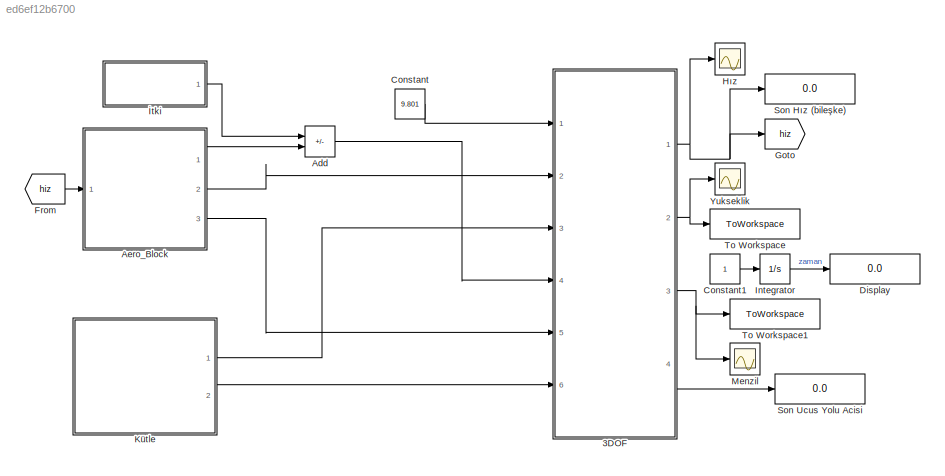
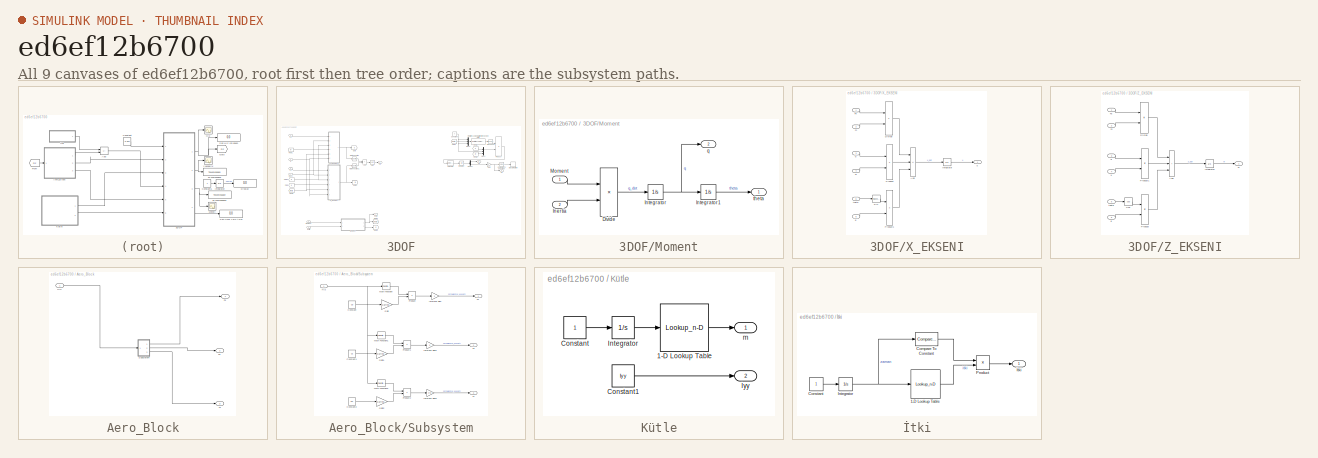
[diagram: thumbnail index - all 9 canvases of the model, root first then tree order]
MODEL slx_ed6ef12b6700
KIND model
CONFIG AbsTol = auto
CONFIG EnableMultiTasking = off
CONFIG FixedStep = auto
CONFIG MaxStep = auto
CONFIG MinStep = auto
CONFIG RelTol = 1e-3
CONFIG SampleTimeConstraint = Unconstrained
CONFIG SolverName = VariableStepAuto
CONFIG StartTime = 0.0
CONFIG StopTime = 500
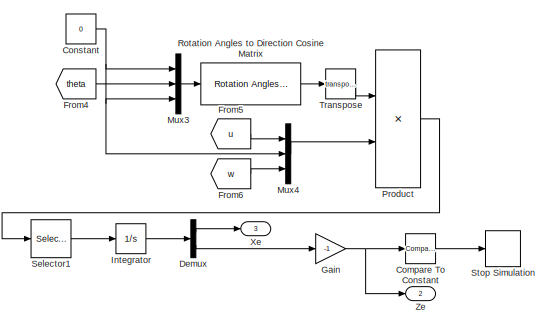
[diagram: 3DOF - part 1/2, top right region]
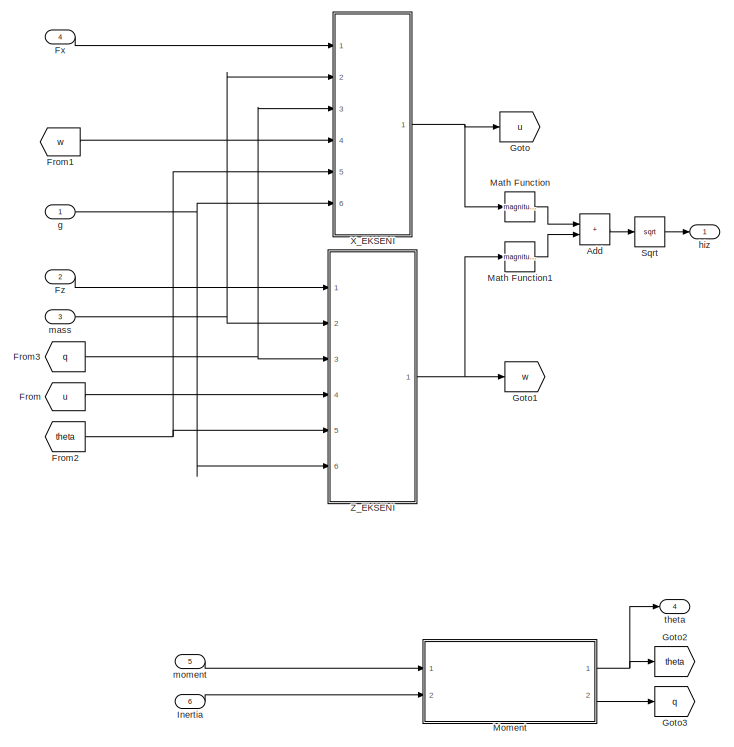
[diagram: 3DOF - part 2/2, left side, full height]
BLOCK [SubSystem] 3DOF
  NameLocation = right
  Ports = [6, 4]
  RequestExecContextInheritance = off
BLOCK [Sum] 3DOF/Add
  IconShape = rectangular
  Ports = [2, 1]
BLOCK [Reference] 3DOF/Compare To Constant  REF=simulink/Logic and Bit
Operations/Compare
To Constant
  Ports = [1, 1]
  SourceBlock = simulink/Logic and Bit\nOperations/Compare\nTo Constant
  SourceProductBaseCode = SL
  SourceType = Compare To Constant
BLOCK [Constant] 3DOF/Constant
  Value = 0
BLOCK [Demux] 3DOF/Demux
  Outputs = 2
  Ports = [1, 2]
BLOCK [From] 3DOF/From
  GotoTag = u
BLOCK [From] 3DOF/From1
  GotoTag = w
BLOCK [From] 3DOF/From2
  GotoTag = theta
BLOCK [From] 3DOF/From3
  GotoTag = q
BLOCK [From] 3DOF/From4
  GotoTag = theta
BLOCK [From] 3DOF/From5
  GotoTag = u
BLOCK [From] 3DOF/From6
  GotoTag = w
BLOCK [Inport] 3DOF/Fx
  Port = 4
BLOCK [Inport] 3DOF/Fz
  Port = 2
BLOCK [Gain] 3DOF/Gain
  Gain = -1
BLOCK [Goto] 3DOF/Goto
  GotoTag = u
BLOCK [Goto] 3DOF/Goto1
  GotoTag = w
BLOCK [Goto] 3DOF/Goto2
  GotoTag = theta
BLOCK [Goto] 3DOF/Goto3
  GotoTag = q
BLOCK [Inport] 3DOF/Inertia
  Port = 6
BLOCK [Integrator] 3DOF/Integrator
  Ports = [1, 1]
BLOCK [Math] 3DOF/Math Function
  Operator = magnitude^2
  Ports = [1, 1]
BLOCK [Math] 3DOF/Math Function1
  Operator = magnitude^2
  Ports = [1, 1]
BLOCK [SubSystem] 3DOF/Moment
  Ports = [2, 2]
  RequestExecContextInheritance = off
BLOCK [Product] 3DOF/Moment/Divide
  Inputs = */
  Ports = [2, 1]
BLOCK [Inport] 3DOF/Moment/Inertia
  Port = 2
BLOCK [Integrator] 3DOF/Moment/Integrator
  Ports = [1, 1]
BLOCK [Integrator] 3DOF/Moment/Integrator1
  InitialCondition = 70*pi/180
  Ports = [1, 1]
BLOCK [Inport] 3DOF/Moment/Moment
BLOCK [Outport] 3DOF/Moment/q
  Port = 2
BLOCK [Outport] 3DOF/Moment/theta
BLOCK [Mux] 3DOF/Mux3
  DisplayOption = bar
  Inputs = 3
  Ports = [3, 1]
BLOCK [Mux] 3DOF/Mux4
  DisplayOption = bar
  Inputs = 3
  Ports = [3, 1]
BLOCK [Product] 3DOF/Product
  Multiplication = Matrix(*)
  OutDataTypeStr = Inherit: Same as first input
  Ports = [2, 1]
  SaturateOnIntegerOverflow = on
BLOCK [Reference] 3DOF/Rotation Angles to Direction Cosine Matrix  REF=sharedtransform/Rotation Angles to
Direction Cosine Matrix
  AttributesFormatString = Rotation Order: %<rotationOrder>
  NameLocation = top
  Ports = [1, 1]
  SourceBlock = sharedtransform/Rotation Angles to\nDirection Cosine Matrix
  SourceProductBaseCode = AE,PW,MT,UV,VE,VP
  SourceType = Ang2DCM
BLOCK [Selector] 3DOF/Selector1
  IndexOptions = Index vector (dialog)
  Indices = [1 3]
  InputPortWidth = 3
  OutputSizes = 1
  Ports = [1, 1]
BLOCK [Sqrt] 3DOF/Sqrt
BLOCK [Stop] 3DOF/Stop Simulation
BLOCK [Math] 3DOF/Transpose
  Operator = transpose
  Ports = [1, 1]
  SignedPower = on
BLOCK [SubSystem] 3DOF/X_EKSENI
  Ports = [6, 1]
  RequestExecContextInheritance = off
BLOCK [Sum] 3DOF/X_EKSENI/Add
  IconShape = rectangular
  Inputs = +--
  Ports = [3, 1]
BLOCK [Product] 3DOF/X_EKSENI/Divide
  Inputs = */
  Ports = [2, 1]
BLOCK [Inport] 3DOF/X_EKSENI/Fx
BLOCK [Integrator] 3DOF/X_EKSENI/Integrator
  Ports = [1, 1]
BLOCK [Product] 3DOF/X_EKSENI/Product
  Ports = [2, 1]
BLOCK [Product] 3DOF/X_EKSENI/Product1
  Ports = [2, 1]
BLOCK [Trigonometry] 3DOF/X_EKSENI/Sin
  Ports = [1, 1]
BLOCK [Inport] 3DOF/X_EKSENI/g
  Port = 6
BLOCK [Inport] 3DOF/X_EKSENI/m
  Port = 2
BLOCK [Inport] 3DOF/X_EKSENI/q
  Port = 3
BLOCK [Inport] 3DOF/X_EKSENI/theta
  Port = 5
BLOCK [Outport] 3DOF/X_EKSENI/u
BLOCK [Inport] 3DOF/X_EKSENI/w
  Port = 4
BLOCK [Outport] 3DOF/Xe
  Port = 3
BLOCK [SubSystem] 3DOF/Z_EKSENI
  Ports = [6, 1]
  RequestExecContextInheritance = off
BLOCK [Sum] 3DOF/Z_EKSENI/Add
  IconShape = rectangular
  Inputs = +++
  Ports = [3, 1]
BLOCK [Trigonometry] 3DOF/Z_EKSENI/Cos
  Operator = cos
  Ports = [1, 1]
BLOCK [Product] 3DOF/Z_EKSENI/Divide
  Inputs = */
  Ports = [2, 1]
BLOCK [Inport] 3DOF/Z_EKSENI/Fz
BLOCK [Integrator] 3DOF/Z_EKSENI/Integrator
  Ports = [1, 1]
BLOCK [Product] 3DOF/Z_EKSENI/Product
  Ports = [2, 1]
BLOCK [Product] 3DOF/Z_EKSENI/Product1
  Ports = [2, 1]
BLOCK [Inport] 3DOF/Z_EKSENI/g
  Port = 6
BLOCK [Inport] 3DOF/Z_EKSENI/m
  Port = 2
BLOCK [Inport] 3DOF/Z_EKSENI/q
  Port = 3
BLOCK [Inport] 3DOF/Z_EKSENI/theta
  Port = 5
BLOCK [Inport] 3DOF/Z_EKSENI/u
  Port = 4
BLOCK [Outport] 3DOF/Z_EKSENI/w
BLOCK [Outport] 3DOF/Ze
  Port = 2
BLOCK [Inport] 3DOF/g
BLOCK [Outport] 3DOF/hiz
BLOCK [Inport] 3DOF/mass
  Port = 3
BLOCK [Inport] 3DOF/moment
  Port = 5
BLOCK [Outport] 3DOF/theta
  Port = 4
BLOCK [Sum] Add
  IconShape = rectangular
  Inputs = +-
  Ports = [2, 1]
BLOCK [SubSystem] Aero_Block
  Ports = [1, 3]
  RequestExecContextInheritance = off
BLOCK [Outport] Aero_Block/Fx
BLOCK [Outport] Aero_Block/Fz
  Port = 2
BLOCK [Inport] Aero_Block/Hız
BLOCK [Outport] Aero_Block/M
  Port = 3
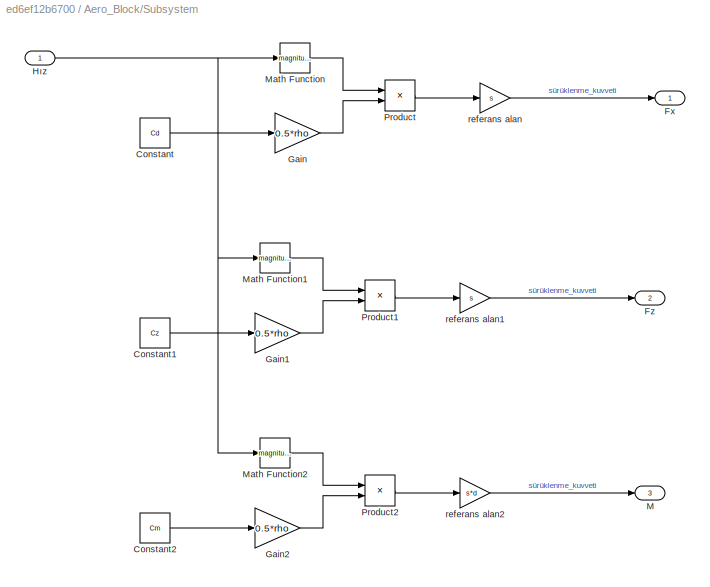
BLOCK [SubSystem] Aero_Block/Subsystem
  Ports = [1, 3]
  RequestExecContextInheritance = off
BLOCK [Constant] Aero_Block/Subsystem/Constant
  Value = Cd
BLOCK [Constant] Aero_Block/Subsystem/Constant1
  Value = Cz
BLOCK [Constant] Aero_Block/Subsystem/Constant2
  Value = Cm
BLOCK [Outport] Aero_Block/Subsystem/Fx
BLOCK [Outport] Aero_Block/Subsystem/Fz
  Port = 2
BLOCK [Gain] Aero_Block/Subsystem/Gain
  Gain = 0.5*rho
BLOCK [Gain] Aero_Block/Subsystem/Gain1
  Gain = 0.5*rho
BLOCK [Gain] Aero_Block/Subsystem/Gain2
  Gain = 0.5*rho
BLOCK [Inport] Aero_Block/Subsystem/Hız
BLOCK [Outport] Aero_Block/Subsystem/M
  Port = 3
BLOCK [Math] Aero_Block/Subsystem/Math Function
  Operator = magnitude^2
  Ports = [1, 1]
BLOCK [Math] Aero_Block/Subsystem/Math Function1
  Operator = magnitude^2
  Ports = [1, 1]
BLOCK [Math] Aero_Block/Subsystem/Math Function2
  Operator = magnitude^2
  Ports = [1, 1]
BLOCK [Product] Aero_Block/Subsystem/Product
  Ports = [2, 1]
BLOCK [Product] Aero_Block/Subsystem/Product1
  Ports = [2, 1]
BLOCK [Product] Aero_Block/Subsystem/Product2
  Ports = [2, 1]
BLOCK [Gain] Aero_Block/Subsystem/referans alan
  Gain = s
BLOCK [Gain] Aero_Block/Subsystem/referans alan1
  Gain = s
BLOCK [Gain] Aero_Block/Subsystem/referans alan2
  Gain = s*d
BLOCK [Constant] Constant
  Value = 9.801
BLOCK [Constant] Constant1
BLOCK [Display] Display
  Decimation = 1
  Ports = [1]
BLOCK [From] From
  GotoTag = hiz
BLOCK [Goto] Goto
  GotoTag = hiz
BLOCK [Scope] Hız
  Floating = off
  NumInputPorts = 1
  Ports = [1]
  ScopeSpecificationString = Simulink.scopes.TimeScopeBlockCfg('CurrentConfiguration', extmgr.ConfigurationSet(extmgr.Configuration('Core','General UI',true),extmgr.Configuration('Core','Source UI',true),extmgr.Configuration('Sources','WiredSimulink',true,'DataLoggingVariableName','ScopeData1'),extmgr.Configuration('Visuals','Time Domain',true,'SerializedDisplays',{struct('MinYLimReal','-37.29024','MaxYLimReal','335.61214','Y...<+1448ch>
BLOCK [Integrator] Integrator
  Ports = [1, 1]
BLOCK [SubSystem] Kütle
  Ports = [0, 2]
  RequestExecContextInheritance = off
BLOCK [Lookup_n-D] Kütle/1-D Lookup Table
  BreakpointsForDimension1 = [1:1001]
  InputPortMap = u0
  InternalRulePriority = Speed
  NumberOfTableDimensions = 1
  Ports = [1, 1]
  RndMeth = Simplest
  Table = m
BLOCK [Constant] Kütle/Constant
BLOCK [Constant] Kütle/Constant1
  Value = Iyy
BLOCK [Integrator] Kütle/Integrator
  Ports = [1, 1]
BLOCK [Outport] Kütle/Iyy
  Port = 2
BLOCK [Outport] Kütle/m
BLOCK [Scope] Menzil
  Floating = off
  NumInputPorts = 1
  Ports = [1]
  ScopeSpecificationString = Simulink.scopes.TimeScopeBlockCfg('CurrentConfiguration', extmgr.ConfigurationSet(extmgr.Configuration('Core','General UI',true),extmgr.Configuration('Core','Source UI',true),extmgr.Configuration('Sources','WiredSimulink',true,'DataLoggingVariableName','ScopeData1'),extmgr.Configuration('Visuals','Time Domain',true,'SerializedDisplays',{struct('MinYLimReal','3545.57475','MaxYLimReal','3545.58346',...<+1433ch>
BLOCK [Display] Son Hız (bileşke)
  Decimation = 1
  Ports = [1]
BLOCK [Display] Son Ucus Yolu Acisi
  Decimation = 1
  Ports = [1]
BLOCK [ToWorkspace] To Workspace
  FixptAsFi = on
  MaxDataPoints = inf
  Ports = [1]
  SampleTime = -1
  VariableName = Ze
BLOCK [ToWorkspace] To Workspace1
  FixptAsFi = on
  MaxDataPoints = inf
  Ports = [1]
  SampleTime = -1
  VariableName = Xe
BLOCK [Scope] Yukseklik
  Floating = off
  NumInputPorts = 1
  Ports = [1]
  ScopeSpecificationString = Simulink.scopes.TimeScopeBlockCfg('CurrentConfiguration', extmgr.ConfigurationSet(extmgr.Configuration('Core','General UI',true),extmgr.Configuration('Core','Source UI',true),extmgr.Configuration('Sources','WiredSimulink',true),extmgr.Configuration('Visuals','Time Domain',true,'SerializedDisplays',{struct('MinYLimReal','3382.86904','MaxYLimReal','3416.44417','YLabelReal','','MinYLimMag','3382.8690...<+1419ch>
BLOCK [SubSystem] İtki
  Ports = [0, 1]
  RequestExecContextInheritance = off
BLOCK [Lookup_n-D] İtki/1-D Lookup Table
  BreakpointsForDimension1 = zaman
  InputPortMap = u0
  InternalRulePriority = Speed
  NumberOfTableDimensions = 1
  Ports = [1, 1]
  RndMeth = Simplest
  Table = itki
BLOCK [Reference] İtki/Compare To Constant  REF=simulink/Logic and Bit
Operations/Compare
To Constant
  Ports = [1, 1]
  SourceBlock = simulink/Logic and Bit\nOperations/Compare\nTo Constant
  SourceProductBaseCode = SL
  SourceType = Compare To Constant
BLOCK [Constant] İtki/Constant
BLOCK [Integrator] İtki/Integrator
  Ports = [1, 1]
BLOCK [Product] İtki/Product
  Ports = [2, 1]
BLOCK [Outport] İtki/İtki
LINE 3DOF/Add:1 -> 3DOF/Sqrt:1
LINE 3DOF/Compare To Constant:1 -> 3DOF/Stop Simulation:1
NET 3DOF/Constant:1 -> 3DOF/Mux3:1, 3DOF/Mux3:3, 3DOF/Mux4:2
LINE 3DOF/Demux:1 -> 3DOF/Xe:1
LINE 3DOF/Demux:2 -> 3DOF/Gain:1
LINE 3DOF/From1:1 -> 3DOF/X_EKSENI:4
NET 3DOF/From2:1 -> 3DOF/X_EKSENI:5, 3DOF/Z_EKSENI:5
NET 3DOF/From3:1 -> 3DOF/X_EKSENI:3, 3DOF/Z_EKSENI:3
LINE 3DOF/From4:1 -> 3DOF/Mux3:2
LINE 3DOF/From5:1 -> 3DOF/Mux4:1
LINE 3DOF/From6:1 -> 3DOF/Mux4:3
LINE 3DOF/From:1 -> 3DOF/Z_EKSENI:4
LINE 3DOF/Fx:1 -> 3DOF/X_EKSENI:1
LINE 3DOF/Fz:1 -> 3DOF/Z_EKSENI:1
NET 3DOF/Gain:1 -> 3DOF/Compare To Constant:1, 3DOF/Ze:1
LINE 3DOF/Inertia:1 -> 3DOF/Moment:2
LINE 3DOF/Integrator:1 -> 3DOF/Demux:1
LINE 3DOF/Math Function1:1 -> 3DOF/Add:2
LINE 3DOF/Math Function:1 -> 3DOF/Add:1
LINE 3DOF/Moment/Divide:1 -> 3DOF/Moment/Integrator:1
LINE 3DOF/Moment/Inertia:1 -> 3DOF/Moment/Divide:2
LINE 3DOF/Moment/Integrator1:1 -> 3DOF/Moment/theta:1
NET 3DOF/Moment/Integrator:1 -> 3DOF/Moment/Integrator1:1, 3DOF/Moment/q:1
LINE 3DOF/Moment/Moment:1 -> 3DOF/Moment/Divide:1
NET 3DOF/Moment:1 -> 3DOF/Goto2:1, 3DOF/theta:1
LINE 3DOF/Moment:2 -> 3DOF/Goto3:1
LINE 3DOF/Mux3:1 -> 3DOF/Rotation Angles to Direction Cosine Matrix:1
LINE 3DOF/Mux4:1 -> 3DOF/Product:2
LINE 3DOF/Product:1 -> 3DOF/Selector1:1
LINE 3DOF/Rotation Angles to Direction Cosine Matrix:1 -> 3DOF/Transpose:1
LINE 3DOF/Selector1:1 -> 3DOF/Integrator:1
LINE 3DOF/Sqrt:1 -> 3DOF/hiz:1
LINE 3DOF/Transpose:1 -> 3DOF/Product:1
LINE 3DOF/X_EKSENI/Add:1 -> 3DOF/X_EKSENI/Integrator:1
LINE 3DOF/X_EKSENI/Divide:1 -> 3DOF/X_EKSENI/Add:1
LINE 3DOF/X_EKSENI/Fx:1 -> 3DOF/X_EKSENI/Divide:1
LINE 3DOF/X_EKSENI/Integrator:1 -> 3DOF/X_EKSENI/u:1
LINE 3DOF/X_EKSENI/Product1:1 -> 3DOF/X_EKSENI/Add:3
LINE 3DOF/X_EKSENI/Product:1 -> 3DOF/X_EKSENI/Add:2
LINE 3DOF/X_EKSENI/Sin:1 -> 3DOF/X_EKSENI/Product1:1
LINE 3DOF/X_EKSENI/g:1 -> 3DOF/X_EKSENI/Product1:2
LINE 3DOF/X_EKSENI/m:1 -> 3DOF/X_EKSENI/Divide:2
LINE 3DOF/X_EKSENI/q:1 -> 3DOF/X_EKSENI/Product:1
LINE 3DOF/X_EKSENI/theta:1 -> 3DOF/X_EKSENI/Sin:1
LINE 3DOF/X_EKSENI/w:1 -> 3DOF/X_EKSENI/Product:2
NET 3DOF/X_EKSENI:1 -> 3DOF/Goto:1, 3DOF/Math Function:1
LINE 3DOF/Z_EKSENI/Add:1 -> 3DOF/Z_EKSENI/Integrator:1
LINE 3DOF/Z_EKSENI/Cos:1 -> 3DOF/Z_EKSENI/Product:1
LINE 3DOF/Z_EKSENI/Divide:1 -> 3DOF/Z_EKSENI/Add:1
LINE 3DOF/Z_EKSENI/Fz:1 -> 3DOF/Z_EKSENI/Divide:1
LINE 3DOF/Z_EKSENI/Integrator:1 -> 3DOF/Z_EKSENI/w:1
LINE 3DOF/Z_EKSENI/Product1:1 -> 3DOF/Z_EKSENI/Add:2
LINE 3DOF/Z_EKSENI/Product:1 -> 3DOF/Z_EKSENI/Add:3
LINE 3DOF/Z_EKSENI/g:1 -> 3DOF/Z_EKSENI/Product:2
LINE 3DOF/Z_EKSENI/m:1 -> 3DOF/Z_EKSENI/Divide:2
LINE 3DOF/Z_EKSENI/q:1 -> 3DOF/Z_EKSENI/Product1:1
LINE 3DOF/Z_EKSENI/theta:1 -> 3DOF/Z_EKSENI/Cos:1
LINE 3DOF/Z_EKSENI/u:1 -> 3DOF/Z_EKSENI/Product1:2
NET 3DOF/Z_EKSENI:1 -> 3DOF/Goto1:1, 3DOF/Math Function1:1
NET 3DOF/g:1 -> 3DOF/X_EKSENI:6, 3DOF/Z_EKSENI:6
NET 3DOF/mass:1 -> 3DOF/X_EKSENI:2, 3DOF/Z_EKSENI:2
LINE 3DOF/moment:1 -> 3DOF/Moment:1
NET 3DOF:1 -> Goto:1, Hız:1, Son Hız (bileşke):1
NET 3DOF:2 -> To Workspace:1, Yukseklik:1
NET 3DOF:3 -> Menzil:1, To Workspace1:1
LINE 3DOF:4 -> Son Ucus Yolu Acisi:1
LINE Add:1 -> 3DOF:4
LINE Aero_Block/Hız:1 -> Aero_Block/Subsystem:1
LINE Aero_Block/Subsystem/Constant1:1 -> Aero_Block/Subsystem/Gain1:1
LINE Aero_Block/Subsystem/Constant2:1 -> Aero_Block/Subsystem/Gain2:1
LINE Aero_Block/Subsystem/Constant:1 -> Aero_Block/Subsystem/Gain:1
LINE Aero_Block/Subsystem/Gain1:1 -> Aero_Block/Subsystem/Product1:2
LINE Aero_Block/Subsystem/Gain2:1 -> Aero_Block/Subsystem/Product2:2
LINE Aero_Block/Subsystem/Gain:1 -> Aero_Block/Subsystem/Product:2
NET Aero_Block/Subsystem/Hız:1 -> Aero_Block/Subsystem/Math Function1:1, Aero_Block/Subsystem/Math Function2:1, Aero_Block/Subsystem/Math Function:1
LINE Aero_Block/Subsystem/Math Function1:1 -> Aero_Block/Subsystem/Product1:1
LINE Aero_Block/Subsystem/Math Function2:1 -> Aero_Block/Subsystem/Product2:1
LINE Aero_Block/Subsystem/Math Function:1 -> Aero_Block/Subsystem/Product:1
LINE Aero_Block/Subsystem/Product1:1 -> Aero_Block/Subsystem/referans alan1:1
LINE Aero_Block/Subsystem/Product2:1 -> Aero_Block/Subsystem/referans alan2:1
LINE Aero_Block/Subsystem/Product:1 -> Aero_Block/Subsystem/referans alan:1
LINE Aero_Block/Subsystem/referans alan1:1 -> Aero_Block/Subsystem/Fz:1
LINE Aero_Block/Subsystem/referans alan2:1 -> Aero_Block/Subsystem/M:1
LINE Aero_Block/Subsystem/referans alan:1 -> Aero_Block/Subsystem/Fx:1
LINE Aero_Block/Subsystem:1 -> Aero_Block/Fx:1
LINE Aero_Block/Subsystem:2 -> Aero_Block/Fz:1
LINE Aero_Block/Subsystem:3 -> Aero_Block/M:1
LINE Aero_Block:1 -> Add:2
LINE Aero_Block:2 -> 3DOF:2
LINE Aero_Block:3 -> 3DOF:5
LINE Constant1:1 -> Integrator:1
LINE Constant:1 -> 3DOF:1
LINE From:1 -> Aero_Block:1
LINE Integrator:1 -> Display:1
LINE Kütle/1-D Lookup Table:1 -> Kütle/m:1
LINE Kütle/Constant1:1 -> Kütle/Iyy:1
LINE Kütle/Constant:1 -> Kütle/Integrator:1
LINE Kütle/Integrator:1 -> Kütle/1-D Lookup Table:1
LINE Kütle:1 -> 3DOF:3
LINE Kütle:2 -> 3DOF:6
LINE İtki/1-D Lookup Table:1 -> İtki/Product:2
LINE İtki/Compare To Constant:1 -> İtki/Product:1
LINE İtki/Constant:1 -> İtki/Integrator:1
NET İtki/Integrator:1 -> İtki/1-D Lookup Table:1, İtki/Compare To Constant:1
LINE İtki/Product:1 -> İtki/İtki:1
LINE İtki:1 -> Add:1
note: NET lines group one-source signal fan-out (src -> all destinations, sorted); 1:1 wires keep LINE
